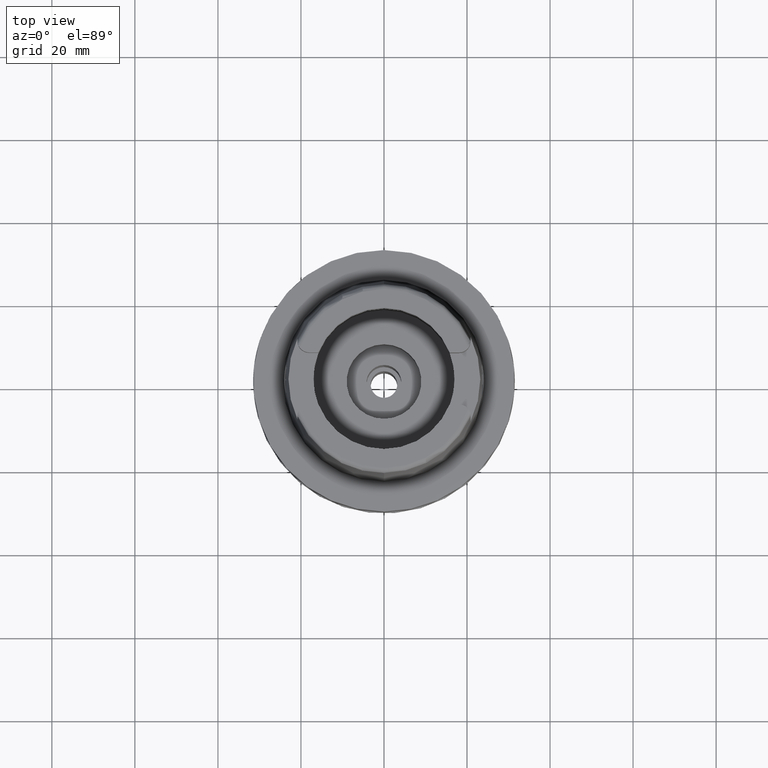
[diagram: clean part render]
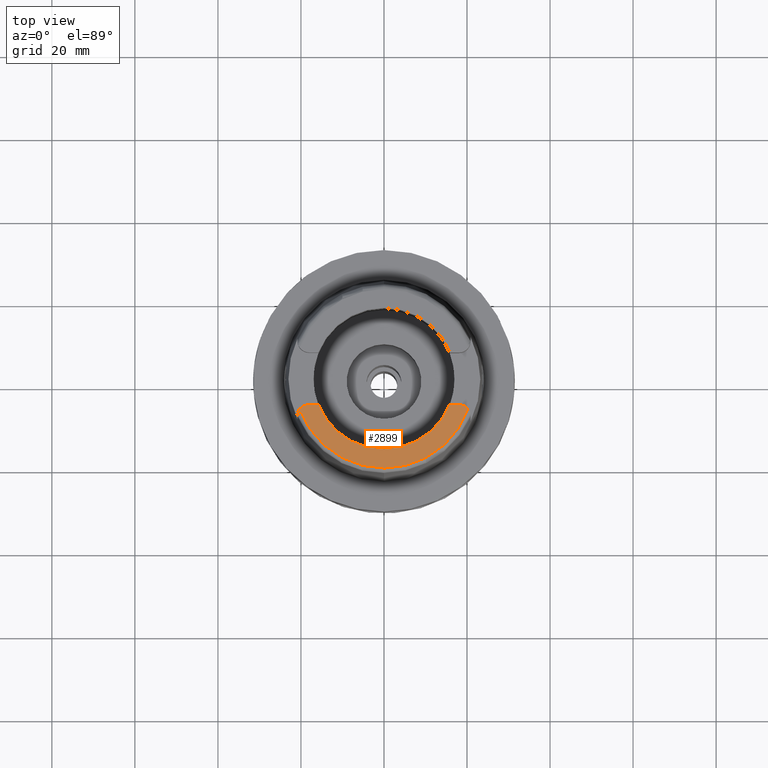
[diagram: same view with one face highlighted and labeled with its STEP entity id]
A machine part, top view. The second image highlights one B-rep face of the part: STEP entity #2899.
In plain terms, the highlighted planar face has unit normal (0, 0, 1).
Its self-contained STEP definition (entity closure, byte-faithful):
#21 = DIRECTION ( 'NONE',  ( -0.7912216523763718756, 0.6115294733786784676, 0.0000000000000000000 ) ) ;
#125 = AXIS2_PLACEMENT_3D ( 'NONE', #503, #890, #21 ) ;
#183 = CARTESIAN_POINT ( 'NONE',  ( 20.28174256341000259, -7.352969181062000814, 32.00000000000000000 ) ) ;
#218 = EDGE_CURVE ( 'NONE', #3427, #5060, #667, .T. ) ;
#244 = PLANE ( 'NONE',  #2044 ) ;
#346 = DIRECTION ( 'NONE',  ( 0.9401236264118068009, -0.3408336354621024911, 0.0000000000000000000 ) ) ;
#503 = CARTESIAN_POINT ( 'NONE',  ( -17.98999999999999844, -9.150000000000000355, 32.00000000000000000 ) ) ;
#529 = DIRECTION ( 'NONE',  ( -0.9294994374136111848, -0.3688235294118045182, 0.0000000000000000000 ) ) ;
#592 = AXIS2_PLACEMENT_3D ( 'NONE', #1544, #731, #1956 ) ;
#667 = LINE ( 'NONE', #1590, #1612 ) ;
#683 = CIRCLE ( 'NONE', #592, 2.800000000000000266 ) ;
#693 = EDGE_CURVE ( 'NONE', #2887, #2794, #683, .T. ) ;
#731 = DIRECTION ( 'NONE',  ( 0.0000000000000000000, 0.0000000000000000000, -1.000000000000000000 ) ) ;
#820 = CARTESIAN_POINT ( 'NONE',  ( 0.0000000000000000000, -17.00000000000000000, 32.00000000000000000 ) ) ;
#890 = DIRECTION ( 'NONE',  ( 0.0000000000000000000, 0.0000000000000000000, -1.000000000000000000 ) ) ;
#947 = VECTOR ( 'NONE', #4955, 1000.000000000000000 ) ;
#949 = ORIENTED_EDGE ( 'NONE', *, *, #2451, .F. ) ;
#1077 = DIRECTION ( 'NONE',  ( 1.000000000000000000, 0.0000000000000000000, 0.0000000000000000000 ) ) ;
#1084 = ORIENTED_EDGE ( 'NONE', *, *, #5344, .F. ) ;
#1257 = CARTESIAN_POINT ( 'NONE',  ( 0.0000000000000000000, 0.0000000000000000000, 32.00000000000000000 ) ) ;
#1450 = AXIS2_PLACEMENT_3D ( 'NONE', #2168, #4195, #4689 ) ;
#1484 = VERTEX_POINT ( 'NONE', #1678 ) ;
#1544 = CARTESIAN_POINT ( 'NONE',  ( 18.07000000000000028, -9.070000000000000284, 32.00000000000000000 ) ) ;
#1590 = CARTESIAN_POINT ( 'NONE',  ( -15.80149043602999903, -6.270000000000000462, 32.00000000000000000 ) ) ;
#1612 = VECTOR ( 'NONE', #4965, 1000.000000000000000 ) ;
#1636 = LINE ( 'NONE', #2500, #947 ) ;
#1678 = CARTESIAN_POINT ( 'NONE',  ( -20.26871835884000106, -7.388795116668999796, 32.00000000000000000 ) ) ;
#1741 = CARTESIAN_POINT ( 'NONE',  ( -17.98999999999999844, -6.270000000000000462, 32.00000000000000000 ) ) ;
#1847 = VERTEX_POINT ( 'NONE', #3535 ) ;
#1900 = CARTESIAN_POINT ( 'NONE',  ( 0.0000000000000000000, 0.0000000000000000000, 32.00000000000000000 ) ) ;
#1956 = DIRECTION ( 'NONE',  ( 0.0000000000000000000, 1.000000000000000000, 0.0000000000000000000 ) ) ;
#2034 = VERTEX_POINT ( 'NONE', #820 ) ;
#2044 = AXIS2_PLACEMENT_3D ( 'NONE', #2799, #4858, #1077 ) ;
#2168 = CARTESIAN_POINT ( 'NONE',  ( 0.0000000000000000000, 0.0000000000000000000, 32.00000000000000000 ) ) ;
#2234 = ORIENTED_EDGE ( 'NONE', *, *, #3992, .F. ) ;
#2299 = DIRECTION ( 'NONE',  ( 0.0000000000000000000, 0.0000000000000000000, 1.000000000000000000 ) ) ;
#2408 = CIRCLE ( 'NONE', #1450, 17.00000000000000000 ) ;
#2451 = EDGE_CURVE ( 'NONE', #1484, #5060, #3739, .T. ) ;
#2500 = CARTESIAN_POINT ( 'NONE',  ( 18.07000000000000028, -6.270000000000000462, 32.00000000000000000 ) ) ;
#2695 = EDGE_CURVE ( 'NONE', #3427, #2034, #2997, .T. ) ;
#2697 = ORIENTED_EDGE ( 'NONE', *, *, #693, .F. ) ;
#2742 = EDGE_LOOP ( 'NONE', ( #2234, #2697, #3459, #1084, #4659, #5406, #949 ) ) ;
#2794 = VERTEX_POINT ( 'NONE', #183 ) ;
#2799 = CARTESIAN_POINT ( 'NONE',  ( 0.0000000000000000000, 0.0000000000000000000, 32.00000000000000000 ) ) ;
#2887 = VERTEX_POINT ( 'NONE', #3156 ) ;
#2899 = ADVANCED_FACE ( 'NONE', ( #4139 ), #244, .T. ) ;
#2997 = CIRCLE ( 'NONE', #3167, 17.00000000000000000 ) ;
#3156 = CARTESIAN_POINT ( 'NONE',  ( 18.07000000000000028, -6.270000000000000462, 32.00000000000000000 ) ) ;
#3167 = AXIS2_PLACEMENT_3D ( 'NONE', #1900, #2299, #529 ) ;
#3427 = VERTEX_POINT ( 'NONE', #5265 ) ;
#3459 = ORIENTED_EDGE ( 'NONE', *, *, #4427, .T. ) ;
#3474 = AXIS2_PLACEMENT_3D ( 'NONE', #1257, #4989, #346 ) ;
#3535 = CARTESIAN_POINT ( 'NONE',  ( 15.80149043602999903, -6.270000000000000462, 32.00000000000000000 ) ) ;
#3739 = CIRCLE ( 'NONE', #125, 2.880000000000003446 ) ;
#3992 = EDGE_CURVE ( 'NONE', #2794, #1484, #5253, .T. ) ;
#4139 = FACE_OUTER_BOUND ( 'NONE', #2742, .T. ) ;
#4195 = DIRECTION ( 'NONE',  ( 0.0000000000000000000, 0.0000000000000000000, 1.000000000000000000 ) ) ;
#4427 = EDGE_CURVE ( 'NONE', #2887, #1847, #1636, .T. ) ;
#4659 = ORIENTED_EDGE ( 'NONE', *, *, #2695, .F. ) ;
#4689 = DIRECTION ( 'NONE',  ( 0.0000000000000000000, -1.000000000000000000, 0.0000000000000000000 ) ) ;
#4858 = DIRECTION ( 'NONE',  ( 0.0000000000000000000, 0.0000000000000000000, 1.000000000000000000 ) ) ;
#4955 = DIRECTION ( 'NONE',  ( -1.000000000000000000, -8.496094534321999950E-14, 0.0000000000000000000 ) ) ;
#4965 = DIRECTION ( 'NONE',  ( -1.000000000000000000, 8.644330667353000255E-14, 0.0000000000000000000 ) ) ;
#4989 = DIRECTION ( 'NONE',  ( 0.0000000000000000000, 0.0000000000000000000, -1.000000000000000000 ) ) ;
#5060 = VERTEX_POINT ( 'NONE', #1741 ) ;
#5253 = CIRCLE ( 'NONE', #3474, 21.57348458609000375 ) ;
#5265 = CARTESIAN_POINT ( 'NONE',  ( -15.80149043602999903, -6.270000000000000462, 32.00000000000000000 ) ) ;
#5344 = EDGE_CURVE ( 'NONE', #2034, #1847, #2408, .T. ) ;
#5406 = ORIENTED_EDGE ( 'NONE', *, *, #218, .T. ) ;